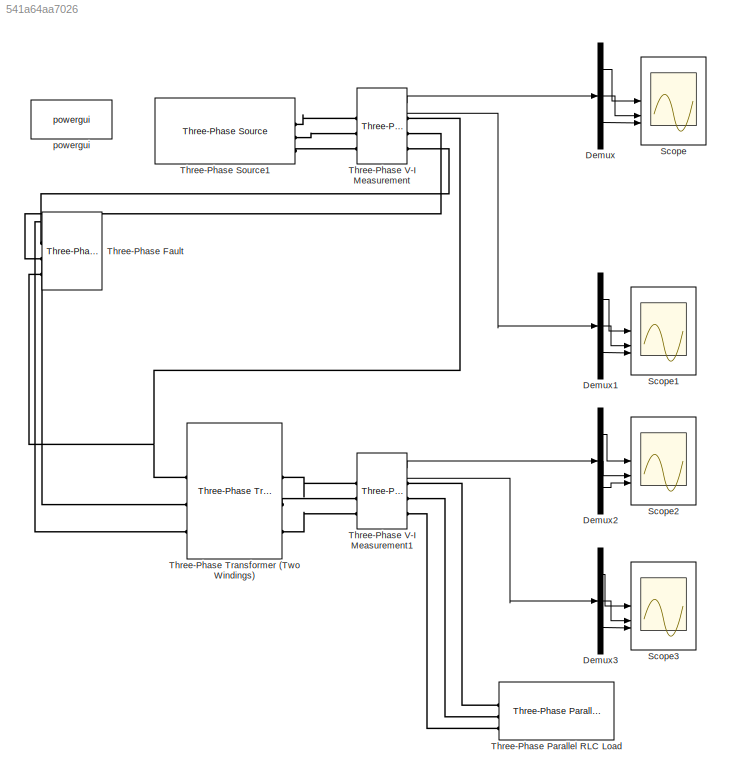
MODEL slx_541a64aa7026
KIND model
CONFIG AbsTol = auto
CONFIG EnableMultiTasking = off
CONFIG FixedStep = auto
CONFIG MaxStep = auto
CONFIG MinStep = auto
CONFIG RelTol = 1e-3
CONFIG SampleTimeConstraint = Unconstrained
CONFIG SolverName = VariableStepAuto
CONFIG StartTime = 0.0
CONFIG StopTime = 0.5
BLOCK [Demux] Demux
  Outputs = 3
BLOCK [Demux] Demux1
  Outputs = 3
BLOCK [Demux] Demux2
  Outputs = 3
BLOCK [Demux] Demux3
  Outputs = 3
BLOCK [Scope] Scope
  Floating = off
  NumInputPorts = 3
  ScopeSpecificationString = Simulink.scopes.TimeScopeBlockCfg('CurrentConfiguration', extmgr.ConfigurationSet(extmgr.Configuration('Core','General UI',true),extmgr.Configuration('Core','Source UI',true),extmgr.Configuration('Sources','WiredSimulink',true),extmgr.Configuration('Visuals','Time Domain',true,'SerializedDisplays',{struct('MinYLimReal','-11102.41435','MaxYLimReal','11157.90795','YLabelReal','','MinYLimMag','   0.0...<+2777ch>
BLOCK [Scope] Scope1
  Floating = off
  NumInputPorts = 3
  ScopeSpecificationString = Simulink.scopes.TimeScopeBlockCfg('CurrentConfiguration', extmgr.ConfigurationSet(extmgr.Configuration('Core','General UI',true),extmgr.Configuration('Core','Source UI',true),extmgr.Configuration('Sources','WiredSimulink',true,'DataLoggingVariableName','ScopeData1'),extmgr.Configuration('Visuals','Time Domain',true,'SerializedDisplays',{struct('MinYLimReal','-2214.46619','MaxYLimReal','3241.43112'...<+2698ch>
BLOCK [Scope] Scope2
  Floating = off
  NumInputPorts = 3
  ScopeSpecificationString = Simulink.scopes.TimeScopeBlockCfg('CurrentConfiguration', extmgr.ConfigurationSet(extmgr.Configuration('Core','General UI',true),extmgr.Configuration('Core','Source UI',true),extmgr.Configuration('Sources','WiredSimulink',true,'DataLoggingVariableName','ScopeData2'),extmgr.Configuration('Visuals','Time Domain',true,'SerializedDisplays',{struct('MinYLimReal','-404.08931','MaxYLimReal','404.30583','...<+2698ch>
BLOCK [Scope] Scope3
  Floating = off
  NumInputPorts = 3
  ScopeSpecificationString = Simulink.scopes.TimeScopeBlockCfg('CurrentConfiguration', extmgr.ConfigurationSet(extmgr.Configuration('Core','General UI',true),extmgr.Configuration('Core','Source UI',true),extmgr.Configuration('Sources','WiredSimulink',true,'DataLoggingVariableName','ScopeData3'),extmgr.Configuration('Visuals','Time Domain',true,'SerializedDisplays',{struct('MinYLimReal','-25.34322','MaxYLimReal','25.26362','YL...<+2758ch>
BLOCK [Reference] Three-Phase Fault  REF=spsThreePhaseFaultLib/Three-Phase Fault
  LibrarySourceBlock = sps_lib/Power Grid Elements/Three-Phase Fault
  SourceBlock = spsThreePhaseFaultLib/Three-Phase Fault
  SourceType = Three-Phase Fault
BLOCK [Reference] Three-Phase Parallel RLC Load  REF=spsThreePhaseParallelRLCLoadLib/Three-Phase
Parallel RLC Load
  AttributesFormatString = \n
  LibrarySourceBlock = sps_lib/Passives/Three-Phase\nParallel RLC Load
  NameLocation = right
  SourceBlock = spsThreePhaseParallelRLCLoadLib/Three-Phase\nParallel RLC Load
  SourceType = Three-Phase Parallel RLC Load
BLOCK [Reference] Three-Phase Source1  REF=spsThreePhaseSourceLib/Three-Phase Source
  LibrarySourceBlock = sps_lib/Sources/Three-Phase Source
  SourceBlock = spsThreePhaseSourceLib/Three-Phase Source
  SourceType = Three-Phase Source
BLOCK [Reference] Three-Phase Transformer (Two Windings)  REF=spsThreePhaseTransformerTwoWindingsLib/Three-Phase
Transformer
(Two Windings)
  LibrarySourceBlock = sps_lib/Power Grid Elements/Three-Phase\nTransformer\n(Two Windings)
  SourceBlock = spsThreePhaseTransformerTwoWindingsLib/Three-Phase\nTransformer\n(Two Windings)
  SourceType = Three-Phase Transformer (Two Windings)
BLOCK [Reference] Three-Phase V-I Measurement  REF=spsThreePhaseVIMeasurementLib/Three-Phase
V-I Measurement
  LibrarySourceBlock = sps_lib/Sensors and Measurements/Three-Phase\nV-I Measurement
  SourceBlock = spsThreePhaseVIMeasurementLib/Three-Phase\nV-I Measurement
  SourceType = Three-Phase VI Measurement
BLOCK [Reference] Three-Phase V-I Measurement1  REF=spsThreePhaseVIMeasurementLib/Three-Phase
V-I Measurement
  LibrarySourceBlock = sps_lib/Sensors and Measurements/Three-Phase\nV-I Measurement
  SourceBlock = spsThreePhaseVIMeasurementLib/Three-Phase\nV-I Measurement
  SourceType = Three-Phase VI Measurement
BLOCK [Reference] powergui  REF=sps_lib/powergui
  LibrarySourceBlock = sps_lib/powergui
  Priority = 1
  SourceBlock = sps_lib/powergui
  SourceType = PSB option menu block
LINE Demux1:1 -> Scope1:1
LINE Demux1:2 -> Scope1:2
LINE Demux1:3 -> Scope1:3
LINE Demux2:1 -> Scope2:1
LINE Demux2:2 -> Scope2:2
LINE Demux2:3 -> Scope2:3
LINE Demux3:1 -> Scope3:1
LINE Demux3:2 -> Scope3:2
LINE Demux3:3 -> Scope3:3
LINE Demux:1 -> Scope:1
LINE Demux:2 -> Scope:2
LINE Demux:3 -> Scope:3
LINE Three-Phase V-I Measurement1:1 -> Demux2:1
LINE Three-Phase V-I Measurement1:2 -> Demux3:1
LINE Three-Phase V-I Measurement:1 -> Demux:1
LINE Three-Phase V-I Measurement:2 -> Demux1:1
PNET net1: Three-Phase Fault:LConn1 -- Three-Phase Transformer (Two Windings):LConn3 -- Three-Phase V-I Measurement:RConn3
PNET net2: Three-Phase Fault:LConn2 -- Three-Phase Transformer (Two Windings):LConn2 -- Three-Phase V-I Measurement:RConn2
PNET net3: Three-Phase Fault:LConn3 -- Three-Phase Transformer (Two Windings):LConn1 -- Three-Phase V-I Measurement:RConn1
PLINE Three-Phase Parallel RLC Load:LConn1 -- Three-Phase V-I Measurement1:RConn1
PLINE Three-Phase Parallel RLC Load:LConn2 -- Three-Phase V-I Measurement1:RConn2
PLINE Three-Phase Parallel RLC Load:LConn3 -- Three-Phase V-I Measurement1:RConn3
PLINE Three-Phase Source1:RConn1 -- Three-Phase V-I Measurement:LConn1
PLINE Three-Phase Source1:RConn2 -- Three-Phase V-I Measurement:LConn2
PLINE Three-Phase Source1:RConn3 -- Three-Phase V-I Measurement:LConn3
PLINE Three-Phase Transformer (Two Windings):RConn1 -- Three-Phase V-I Measurement1:LConn1
PLINE Three-Phase Transformer (Two Windings):RConn2 -- Three-Phase V-I Measurement1:LConn2
PLINE Three-Phase Transformer (Two Windings):RConn3 -- Three-Phase V-I Measurement1:LConn3
note: PNET lines group multi-terminal physical nets as a canonical sorted terminal list (undirected conserving connections); 2-terminal nets keep the pairwise PLINE form
